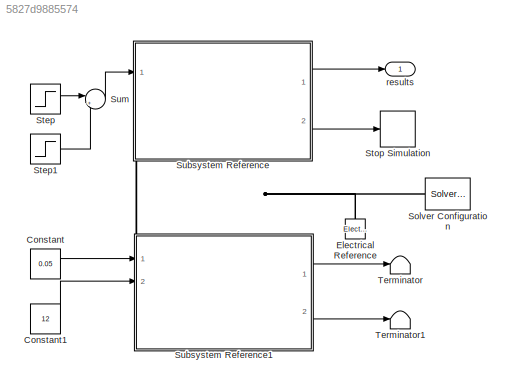
MODEL slx_5827d9885574
KIND model
CONFIG AbsTol = auto
CONFIG EnableMultiTasking = off
CONFIG FixedStep = auto
CONFIG MaxStep = auto
CONFIG MinStep = auto
CONFIG RelTol = 1e-3
CONFIG SampleTimeConstraint = Unconstrained
CONFIG SolverName = VariableStepAuto
CONFIG StartTime = 0.0
CONFIG StopTime = 100
BLOCK [Constant] Constant
  Value = 0.05
BLOCK [Constant] Constant1
  Value = 12
BLOCK [Reference] Electrical Reference  REF=fl_lib/Electrical/Electrical Elements/Electrical Reference
  NameLocation = right
  Ports = [0, 0, 0, 0, 0, 1]
  SourceBlock = fl_lib/Electrical/Electrical Elements/Electrical Reference
  SourceProductBaseCode = PW,SS,VE
  SourceType = Electrical Reference
BLOCK [Reference] Solver Configuration  REF=nesl_utility/Solver
Configuration
  Ports = [0, 0, 0, 0, 0, 0, 1]
  SourceBlock = nesl_utility/Solver\nConfiguration
  SourceProductBaseCode = SS,PW,VE
  SourceType = Solver\nConfiguration
BLOCK [Step] Step
  SampleTime = 0
  Time = 0.1
BLOCK [Step] Step1
  After = -1
  SampleTime = 0
  Time = 0.2
BLOCK [Stop] Stop Simulation
BLOCK [SubSystem] Subsystem Reference
  PortSchema = {"entries":[{"content":{"sides":[{"content":{"connectorIds":["In1"]},"type":"ConnectorPlacement.EquallySpacedRectSide","uuid":"b4295795-bb4f-4226-ae08-13ff31e69c7e"},{"content":{"connectorIds":["Out1","Out2"],"side":"RIGHT"},"type":"ConnectorPlacement.EquallySpacedRectSide","uuid":"cf500fd2-35e2-47f1-8094-2f89cbc86857"},{"content":{"connectorIds":[],"side":"TOP"},"type":"ConnectorPlacement.Equally...<+408ch>
  Ports = [1, 2, 0, 0, 0, 2]
  ReferencedSubsystem = EIS
  RequestExecContextInheritance = off
BLOCK [SubSystem] Subsystem Reference1
  PortSchema = {"entries":[{"content":{"sides":[{"content":{"connectorIds":["In1","In2"]},"type":"ConnectorPlacement.EquallySpacedRectSide","uuid":"747fffec-1188-4560-a63f-e796ff73abc9"},{"content":{"connectorIds":["Out1","Out2"],"side":"RIGHT"},"type":"ConnectorPlacement.EquallySpacedRectSide","uuid":"c8b2c27b-57f0-426f-8f7f-d4e2bbdef76e"},{"content":{"connectorIds":["LConn1","LConn2"],"side":"TOP"},"type":"Con...<+270ch>
  Ports = [2, 2, 0, 0, 0, 2]
  ReferencedSubsystem = eletrical_model
  RequestExecContextInheritance = off
BLOCK [Sum] Sum
  Inputs = |++
  Ports = [2, 1]
BLOCK [Terminator] Terminator
BLOCK [Terminator] Terminator1
BLOCK [Outport] results
LINE Constant1:1 -> Subsystem Reference1:2
LINE Constant:1 -> Subsystem Reference1:1
LINE Step1:1 -> Sum:2
LINE Step:1 -> Sum:1
LINE Subsystem Reference1:1 -> Terminator:1
LINE Subsystem Reference1:2 -> Terminator1:1
LINE Subsystem Reference:1 -> results:1
LINE Subsystem Reference:2 -> Stop Simulation:1
LINE Sum:1 -> Subsystem Reference:1
PNET net1: Electrical Reference:LConn1 -- Solver Configuration:RConn1 -- Subsystem Reference1:LConn2 -- Subsystem Reference:LConn2
PLINE Subsystem Reference1:LConn1 -- Subsystem Reference:LConn1
note: PNET lines group multi-terminal physical nets as a canonical sorted terminal list (undirected conserving connections); 2-terminal nets keep the pairwise PLINE form
